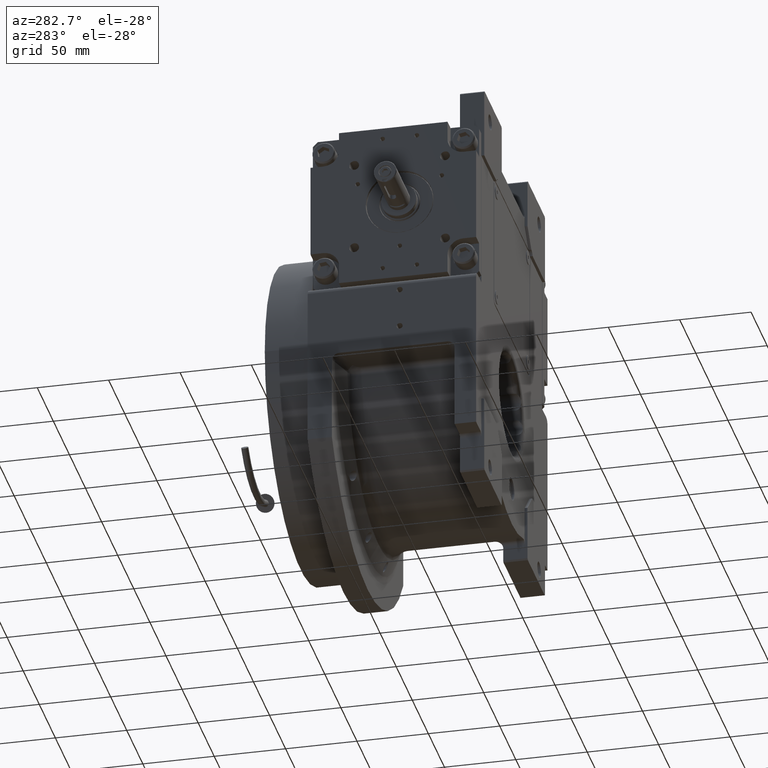
[diagram: clean part render]
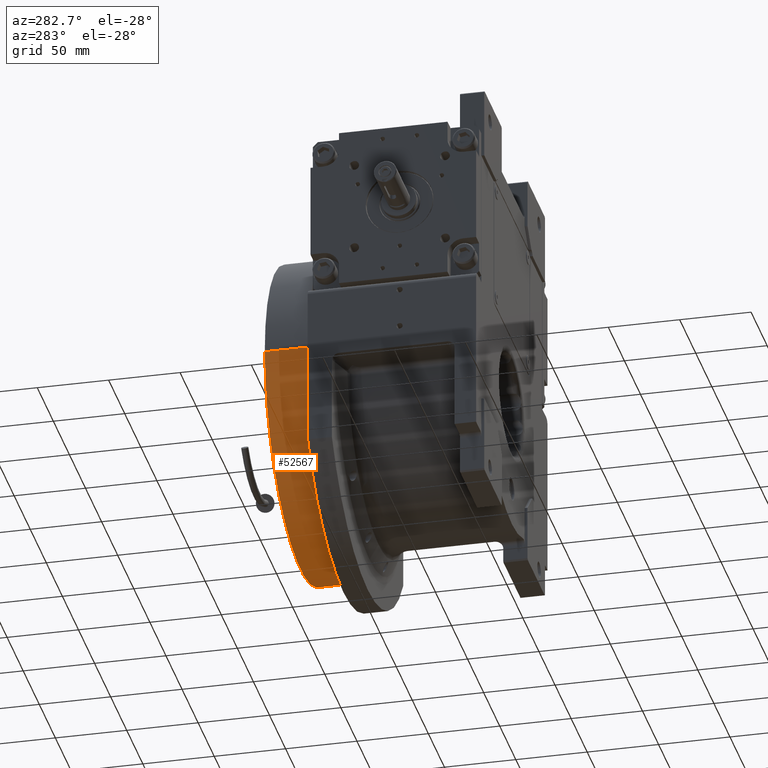
[diagram: same view with one face highlighted and labeled with its STEP entity id]
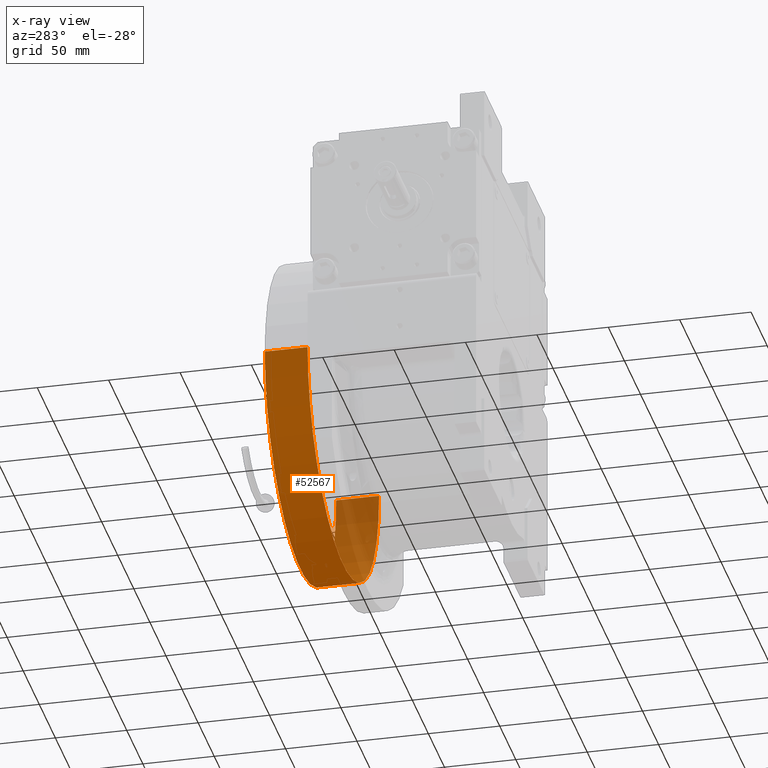
[diagram: x-ray of the same camera — body ghosted, the highlighted face saturated]
A machine part, auxiliary view. The second image highlights one B-rep face of the part: STEP entity #52567.
The next image is the same camera in x-ray: the body ghosted, the highlighted face saturated — about 23% of this face is hidden behind the body in this view.
In plain terms, the highlighted cylindrical surface (partial cylindrical patch) has radius 111 mm, axis along (0, -1, 0).
Its self-contained STEP definition (entity closure, byte-faithful):
#795 = ORIENTED_EDGE ( 'NONE', *, *, #7432, .T. ) ;
#1292 = LINE ( 'NONE', #22690, #33690 ) ;
#3765 = CARTESIAN_POINT ( 'NONE',  ( 0.000000000000000000, 0.000000000000000000, 0.000000000000000000 ) ) ;
#4634 = CARTESIAN_POINT ( 'NONE',  ( -111.0000000000000000, 4.531193156845210737E-15, 30.00000000000000000 ) ) ;
#4887 = CARTESIAN_POINT ( 'NONE',  ( 0.000000000000000000, 0.000000000000000000, 0.000000000000000000 ) ) ;
#5109 = DIRECTION ( 'NONE',  ( 0.000000000000000000, 0.000000000000000000, 1.000000000000000000 ) ) ;
#7432 = EDGE_CURVE ( 'NONE', #15936, #43672, #41206, .T. ) ;
#9117 = DIRECTION ( 'NONE',  ( 0.000000000000000000, 0.000000000000000000, 1.000000000000000000 ) ) ;
#10824 = ORIENTED_EDGE ( 'NONE', *, *, #59856, .T. ) ;
#10873 = AXIS2_PLACEMENT_3D ( 'NONE', #4887, #9117, #25963 ) ;
#11815 = CIRCLE ( 'NONE', #51089, 111.0000000000000000 ) ;
#12104 = AXIS2_PLACEMENT_3D ( 'NONE', #3765, #20934, #63520 ) ;
#15936 = VERTEX_POINT ( 'NONE', #59219 ) ;
#20575 = ORIENTED_EDGE ( 'NONE', *, *, #31455, .F. ) ;
#20934 = DIRECTION ( 'NONE',  ( 0.000000000000000000, 0.000000000000000000, -1.000000000000000000 ) ) ;
#22690 = CARTESIAN_POINT ( 'NONE',  ( 111.0000000000000000, 0.000000000000000000, 0.000000000000000000 ) ) ;
#25963 = DIRECTION ( 'NONE',  ( 1.000000000000000000, 0.000000000000000000, 0.000000000000000000 ) ) ;
#28321 = DIRECTION ( 'NONE',  ( 0.000000000000000000, 0.000000000000000000, 1.000000000000000000 ) ) ;
#30036 = VERTEX_POINT ( 'NONE', #48010 ) ;
#30819 = CYLINDRICAL_SURFACE ( 'NONE', #12104, 111.0000000000000000 ) ;
#31455 = EDGE_CURVE ( 'NONE', #15936, #30036, #1292, .T. ) ;
#33690 = VECTOR ( 'NONE', #28321, 1000.000000000000000 ) ;
#41206 = CIRCLE ( 'NONE', #10873, 111.0000000000000000 ) ;
#42051 = DIRECTION ( 'NONE',  ( 1.000000000000000000, 0.000000000000000000, 0.000000000000000000 ) ) ;
#43672 = VERTEX_POINT ( 'NONE', #68441 ) ;
#48010 = CARTESIAN_POINT ( 'NONE',  ( 111.0000000000000000, 0.000000000000000000, 30.00000000000000000 ) ) ;
#49372 = EDGE_LOOP ( 'NONE', ( #10824, #59831, #20575, #795 ) ) ;
#49572 = EDGE_CURVE ( 'NONE', #30036, #62948, #11815, .T. ) ;
#49598 = DIRECTION ( 'NONE',  ( 0.000000000000000000, 0.000000000000000000, 1.000000000000000000 ) ) ;
#51089 = AXIS2_PLACEMENT_3D ( 'NONE', #68753, #5109, #42051 ) ;
#52567 = ADVANCED_FACE ( 'NONE', ( #62832 ), #30819, .T. ) ;
#54271 = VECTOR ( 'NONE', #49598, 1000.000000000000000 ) ;
#55910 = LINE ( 'NONE', #65426, #54271 ) ;
#59219 = CARTESIAN_POINT ( 'NONE',  ( 111.0000000000000000, 0.000000000000000000, 0.000000000000000000 ) ) ;
#59831 = ORIENTED_EDGE ( 'NONE', *, *, #49572, .F. ) ;
#59856 = EDGE_CURVE ( 'NONE', #43672, #62948, #55910, .T. ) ;
#62832 = FACE_OUTER_BOUND ( 'NONE', #49372, .T. ) ;
#62948 = VERTEX_POINT ( 'NONE', #4634 ) ;
#63520 = DIRECTION ( 'NONE',  ( 1.000000000000000000, 0.000000000000000000, 0.000000000000000000 ) ) ;
#65426 = CARTESIAN_POINT ( 'NONE',  ( -111.0000000000000000, 1.359357947053561722E-14, 0.000000000000000000 ) ) ;
#68441 = CARTESIAN_POINT ( 'NONE',  ( -111.0000000000000000, 4.531193156845210737E-15, 0.000000000000000000 ) ) ;
#68753 = CARTESIAN_POINT ( 'NONE',  ( 0.000000000000000000, 0.000000000000000000, 30.00000000000000000 ) ) ;